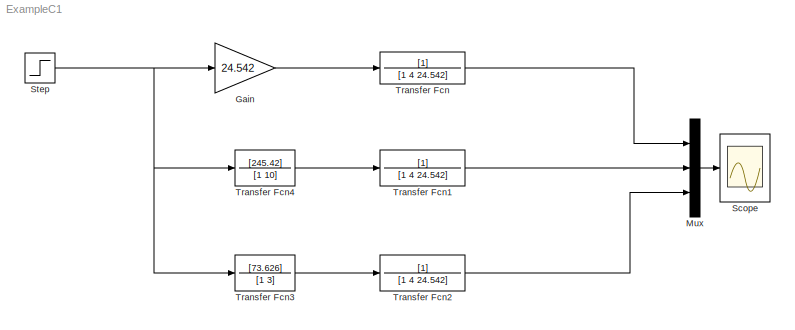
MODEL ExampleC1
KIND model
BLOCK [Gain] Gain
  Gain = 24.542
  OutDataTypeStr = Inherit: Inherit via internal rule
  ParamDataTypeStr = Inherit: Inherit via internal rule
  SID = 6
  SaturateOnIntegerOverflow = off
BLOCK [Mux] Mux
  DisplayOption = bar
  Inputs = 3
  Ports = [3, 1]
  SID = 5
BLOCK [Scope] Scope
  Ports = [1]
  SID = 4
  ScopeSpecificationString = Simulink.scopes.TimeScopeBlockCfg('CurrentConfiguration', extmgr.ConfigurationSet(extmgr.Configuration('Core','General UI',true),extmgr.Configuration('Core','Source UI',true),extmgr.Configuration('Sources','WiredSimulink',true,'DataLoggingLimitDataPoints',true),extmgr.Configuration('Visuals','Time Domain',true,'SerializedDisplays',{struct('MinYLimReal','0','MaxYLimReal','2','YLabelReal','','MinYLi...<+1433ch>
BLOCK [Step] Step
  SID = 12
  SampleTime = 0
  Time = 0
BLOCK [TransferFcn] Transfer Fcn
  Denominator = [1 4 24.542]
  SID = 13
BLOCK [TransferFcn] Transfer Fcn1
  Denominator = [1 4 24.542]
  SID = 14
BLOCK [TransferFcn] Transfer Fcn2
  Denominator = [1 4 24.542]
  SID = 15
BLOCK [TransferFcn] Transfer Fcn3
  Denominator = [1 3]
  Numerator = [73.626]
  SID = 16
BLOCK [TransferFcn] Transfer Fcn4
  Denominator = [1 10]
  Numerator = [245.42]
  SID = 17
LINE Gain:1 -> Transfer Fcn:1
LINE Mux:1 -> Scope:1
NET Step:1 -> Gain:1, Transfer Fcn3:1, Transfer Fcn4:1
LINE Transfer Fcn1:1 -> Mux:2
LINE Transfer Fcn2:1 -> Mux:3
LINE Transfer Fcn3:1 -> Transfer Fcn2:1
LINE Transfer Fcn4:1 -> Transfer Fcn1:1
LINE Transfer Fcn:1 -> Mux:1
note: NET lines group one-source signal fan-out (src -> all destinations, sorted); 1:1 wires keep LINE
